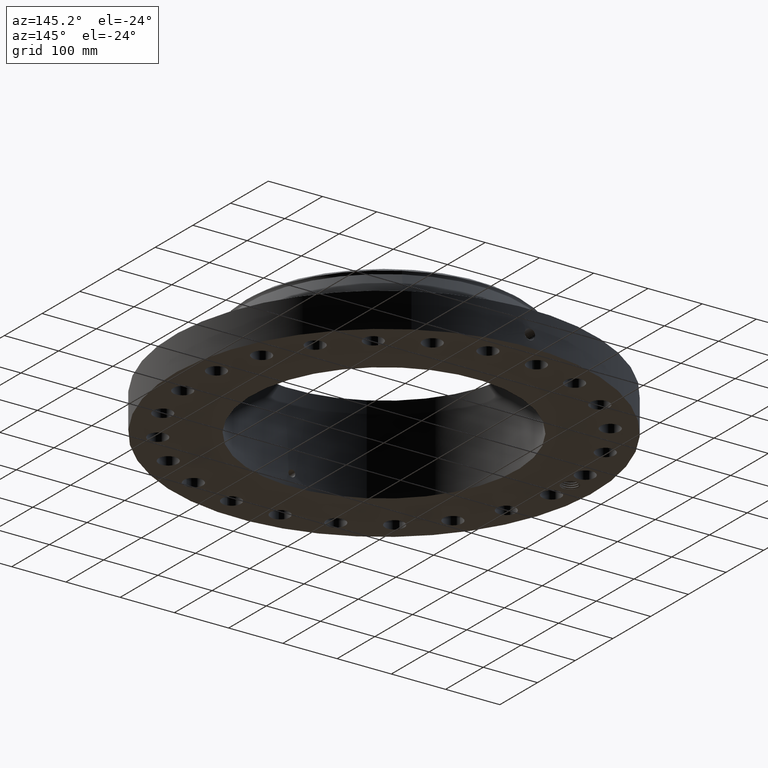
[diagram: clean part render]
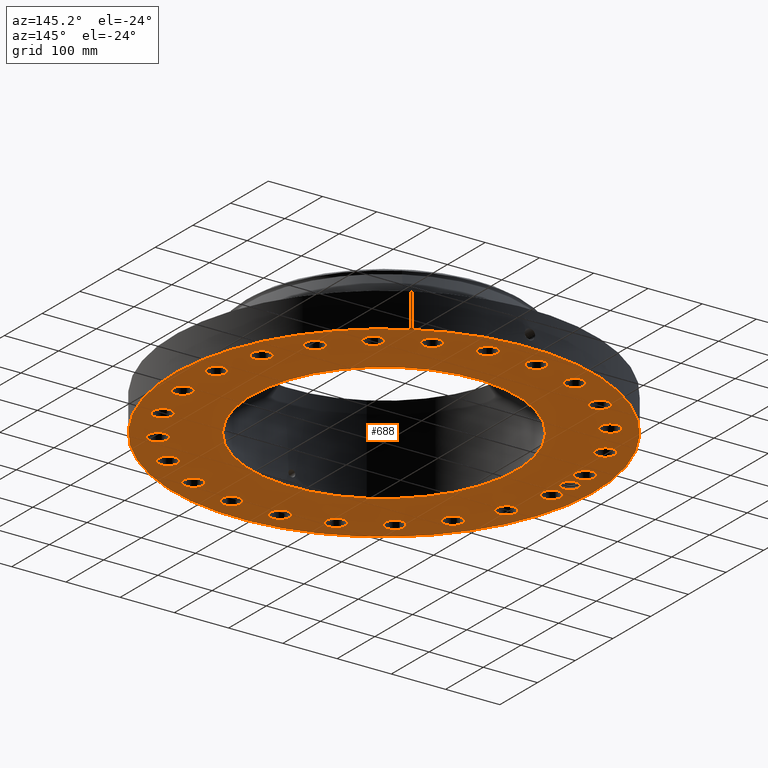
[diagram: same view with one face highlighted and labeled with its STEP entity id]
A machine part, auxiliary view. The second image highlights one B-rep face of the part: STEP entity #688.
In plain terms, the highlighted planar face has unit normal (0, 0, -1).
Its self-contained STEP definition (entity closure, byte-faithful):
#42=AXIS2_PLACEMENT_3D('Circle Axis2P3D',#40,#41,$) ;
#165=AXIS2_PLACEMENT_3D('Plane Axis2P3D',#162,#163,#164) ;
#169=AXIS2_PLACEMENT_3D('Circle Axis2P3D',#167,#168,$) ;
#178=AXIS2_PLACEMENT_3D('Circle Axis2P3D',#176,#177,$) ;
#187=AXIS2_PLACEMENT_3D('Circle Axis2P3D',#185,#186,$) ;
#194=AXIS2_PLACEMENT_3D('Circle Axis2P3D',#192,#193,$) ;
#240=AXIS2_PLACEMENT_3D('Circle Axis2P3D',#238,#239,$) ;
#249=AXIS2_PLACEMENT_3D('Circle Axis2P3D',#247,#248,$) ;
#258=AXIS2_PLACEMENT_3D('Circle Axis2P3D',#256,#257,$) ;
#267=AXIS2_PLACEMENT_3D('Circle Axis2P3D',#265,#266,$) ;
#276=AXIS2_PLACEMENT_3D('Circle Axis2P3D',#274,#275,$) ;
#285=AXIS2_PLACEMENT_3D('Circle Axis2P3D',#283,#284,$) ;
#294=AXIS2_PLACEMENT_3D('Circle Axis2P3D',#292,#293,$) ;
#303=AXIS2_PLACEMENT_3D('Circle Axis2P3D',#301,#302,$) ;
#312=AXIS2_PLACEMENT_3D('Circle Axis2P3D',#310,#311,$) ;
#321=AXIS2_PLACEMENT_3D('Circle Axis2P3D',#319,#320,$) ;
#330=AXIS2_PLACEMENT_3D('Circle Axis2P3D',#328,#329,$) ;
#339=AXIS2_PLACEMENT_3D('Circle Axis2P3D',#337,#338,$) ;
#348=AXIS2_PLACEMENT_3D('Circle Axis2P3D',#346,#347,$) ;
#357=AXIS2_PLACEMENT_3D('Circle Axis2P3D',#355,#356,$) ;
#366=AXIS2_PLACEMENT_3D('Circle Axis2P3D',#364,#365,$) ;
#375=AXIS2_PLACEMENT_3D('Circle Axis2P3D',#373,#374,$) ;
#384=AXIS2_PLACEMENT_3D('Circle Axis2P3D',#382,#383,$) ;
#393=AXIS2_PLACEMENT_3D('Circle Axis2P3D',#391,#392,$) ;
#402=AXIS2_PLACEMENT_3D('Circle Axis2P3D',#400,#401,$) ;
#411=AXIS2_PLACEMENT_3D('Circle Axis2P3D',#409,#410,$) ;
#420=AXIS2_PLACEMENT_3D('Circle Axis2P3D',#418,#419,$) ;
#429=AXIS2_PLACEMENT_3D('Circle Axis2P3D',#427,#428,$) ;
#438=AXIS2_PLACEMENT_3D('Circle Axis2P3D',#436,#437,$) ;
#447=AXIS2_PLACEMENT_3D('Circle Axis2P3D',#445,#446,$) ;
#456=AXIS2_PLACEMENT_3D('Circle Axis2P3D',#454,#455,$) ;
#465=AXIS2_PLACEMENT_3D('Circle Axis2P3D',#463,#464,$) ;
#474=AXIS2_PLACEMENT_3D('Circle Axis2P3D',#472,#473,$) ;
#483=AXIS2_PLACEMENT_3D('Circle Axis2P3D',#481,#482,$) ;
#492=AXIS2_PLACEMENT_3D('Circle Axis2P3D',#490,#491,$) ;
#501=AXIS2_PLACEMENT_3D('Circle Axis2P3D',#499,#500,$) ;
#510=AXIS2_PLACEMENT_3D('Circle Axis2P3D',#508,#509,$) ;
#519=AXIS2_PLACEMENT_3D('Circle Axis2P3D',#517,#518,$) ;
#528=AXIS2_PLACEMENT_3D('Circle Axis2P3D',#526,#527,$) ;
#537=AXIS2_PLACEMENT_3D('Circle Axis2P3D',#535,#536,$) ;
#546=AXIS2_PLACEMENT_3D('Circle Axis2P3D',#544,#545,$) ;
#555=AXIS2_PLACEMENT_3D('Circle Axis2P3D',#553,#554,$) ;
#564=AXIS2_PLACEMENT_3D('Circle Axis2P3D',#562,#563,$) ;
#573=AXIS2_PLACEMENT_3D('Circle Axis2P3D',#571,#572,$) ;
#582=AXIS2_PLACEMENT_3D('Circle Axis2P3D',#580,#581,$) ;
#591=AXIS2_PLACEMENT_3D('Circle Axis2P3D',#589,#590,$) ;
#600=AXIS2_PLACEMENT_3D('Circle Axis2P3D',#598,#599,$) ;
#609=AXIS2_PLACEMENT_3D('Circle Axis2P3D',#607,#608,$) ;
#618=AXIS2_PLACEMENT_3D('Circle Axis2P3D',#616,#617,$) ;
#627=AXIS2_PLACEMENT_3D('Circle Axis2P3D',#625,#626,$) ;
#636=AXIS2_PLACEMENT_3D('Circle Axis2P3D',#634,#635,$) ;
#645=AXIS2_PLACEMENT_3D('Circle Axis2P3D',#643,#644,$) ;
#654=AXIS2_PLACEMENT_3D('Circle Axis2P3D',#652,#653,$) ;
#663=AXIS2_PLACEMENT_3D('Circle Axis2P3D',#661,#662,$) ;
#672=AXIS2_PLACEMENT_3D('Circle Axis2P3D',#670,#671,$) ;
#681=AXIS2_PLACEMENT_3D('Circle Axis2P3D',#679,#680,$) ;
#40=CARTESIAN_POINT('Axis2P3D Location',(0.,0.,0.0600000000002)) ;
#44=CARTESIAN_POINT('Vertex',(-7.31123946374,-13.3831340689,0.0600000000002)) ;
#46=CARTESIAN_POINT('Vertex',(7.31123946374,13.3831340689,0.0600000000002)) ;
#162=CARTESIAN_POINT('Axis2P3D Location',(0.,9.62500000004,0.0600000000002)) ;
#167=CARTESIAN_POINT('Axis2P3D Location',(0.,0.,0.0600000000002)) ;
#176=CARTESIAN_POINT('Axis2P3D Location',(-13.5000000001,-1.1189649382E-015,0.0600000000002)) ;
#180=CARTESIAN_POINT('Vertex',(-12.9605587751,-0.294698084326,0.0600000000002)) ;
#182=CARTESIAN_POINT('Vertex',(-14.0518545838,-0.270740308224,0.0600000000002)) ;
#185=CARTESIAN_POINT('Axis2P3D Location',(-13.5000000001,-1.1189649382E-015,0.0600000000002)) ;
#189=CARTESIAN_POINT('Vertex',(-14.039441225,0.294698084326,0.0600000000002)) ;
#192=CARTESIAN_POINT('Axis2P3D Location',(-13.5000000001,-1.1189649382E-015,0.0600000000002)) ;
#196=CARTESIAN_POINT('Vertex',(-14.052864647,0.26867169227,0.0600000000002)) ;
#200=CARTESIAN_POINT('Control Point',(-14.1249499763,1.94435300406E-006,0.0600000000002)) ;
#201=CARTESIAN_POINT('Control Point',(-14.1230864279,0.0512675049759,0.0600000000002)) ;
#202=CARTESIAN_POINT('Control Point',(-14.1159624907,0.102251961803,0.0600000000002)) ;
#203=CARTESIAN_POINT('Control Point',(-14.1036230026,0.152212436579,0.0600000000002)) ;
#204=CARTESIAN_POINT('Control Point',(-14.0845468883,0.205196011883,0.0600000000002)) ;
#205=CARTESIAN_POINT('Control Point',(-14.0598095442,0.255300651971,0.0600000000002)) ;
#206=CARTESIAN_POINT('Control Point',(-14.057539594,0.259782378553,0.0600000000002)) ;
#207=CARTESIAN_POINT('Control Point',(-14.0552245136,0.264239593728,0.0600000000002)) ;
#208=CARTESIAN_POINT('Control Point',(-14.052864647,0.26867169227,0.0600000000002)) ;
#209=CARTESIAN_POINT('Vertex',(-14.1249499763,1.94435300497E-006,0.0600000000002)) ;
#213=CARTESIAN_POINT('Control Point',(-14.1249984888,-0.00137441822321,0.0600000000002)) ;
#214=CARTESIAN_POINT('Control Point',(-14.1249890896,-0.00109912998109,0.0600000000002)) ;
#215=CARTESIAN_POINT('Control Point',(-14.1249795388,-0.000823849504855,0.0600000000002)) ;
#216=CARTESIAN_POINT('Control Point',(-14.1249698363,-0.000548576758332,0.0600000000002)) ;
#217=CARTESIAN_POINT('Control Point',(-14.1249599821,-0.000273312151102,0.0600000000002)) ;
#218=CARTESIAN_POINT('Control Point',(-14.1249499763,1.94435300518E-006,0.0600000000002)) ;
#219=CARTESIAN_POINT('Vertex',(-14.1249984888,-0.00137441822321,0.0600000000002)) ;
#223=CARTESIAN_POINT('Control Point',(-14.1249984888,-0.00137441822321,0.0600000000002)) ;
#224=CARTESIAN_POINT('Control Point',(-14.1228208459,-0.0578675644873,0.0600000000002)) ;
#225=CARTESIAN_POINT('Control Point',(-14.1142555514,-0.114005207137,0.0600000000002)) ;
#226=CARTESIAN_POINT('Control Point',(-14.0993530818,-0.1688174646,0.0600000000002)) ;
#227=CARTESIAN_POINT('Control Point',(-14.078394632,-0.221344362841,0.0600000000002)) ;
#228=CARTESIAN_POINT('Control Point',(-14.0518545838,-0.270740308224,0.0600000000002)) ;
#238=CARTESIAN_POINT('Axis2P3D Location',(13.3845056286,-1.76210359498,0.0600000000002)) ;
#242=CARTESIAN_POINT('Vertex',(13.9900375963,-2.09290721662,0.0600000000002)) ;
#244=CARTESIAN_POINT('Vertex',(12.7789736609,-1.43129997334,0.0600000000002)) ;
#247=CARTESIAN_POINT('Axis2P3D Location',(13.3845056286,-1.76210359498,0.0600000000002)) ;
#256=CARTESIAN_POINT('Axis2P3D Location',(0.,0.,0.0600000000002)) ;
#260=CARTESIAN_POINT('Vertex',(4.61447080908,8.44673215823,0.0600000000002)) ;
#262=CARTESIAN_POINT('Vertex',(-4.61447080908,-8.44673215823,0.0600000000002)) ;
#265=CARTESIAN_POINT('Axis2P3D Location',(0.,0.,0.0600000000002)) ;
#274=CARTESIAN_POINT('Axis2P3D Location',(12.472373689,-5.16622633695,0.0600000000002)) ;
#278=CARTESIAN_POINT('Vertex',(11.9730930002,-4.68997136972,0.0600000000002)) ;
#280=CARTESIAN_POINT('Vertex',(12.9716543777,-5.64248130418,0.0600000000002)) ;
#283=CARTESIAN_POINT('Axis2P3D Location',(12.472373689,-5.16622633695,0.0600000000002)) ;
#292=CARTESIAN_POINT('Axis2P3D Location',(10.710270094,-8.21827929165,0.0600000000002)) ;
#296=CARTESIAN_POINT('Vertex',(10.351265838,-7.62902896779,0.0600000000002)) ;
#298=CARTESIAN_POINT('Vertex',(11.06927435,-8.80752961551,0.0600000000002)) ;
#301=CARTESIAN_POINT('Axis2P3D Location',(10.710270094,-8.21827929165,0.0600000000002)) ;
#310=CARTESIAN_POINT('Axis2P3D Location',(8.21827929165,-10.710270094,0.0600000000002)) ;
#314=CARTESIAN_POINT('Vertex',(8.02401701516,-10.0481808493,0.0600000000002)) ;
#316=CARTESIAN_POINT('Vertex',(8.41254156814,-11.3723593387,0.0600000000002)) ;
#319=CARTESIAN_POINT('Axis2P3D Location',(8.21827929165,-10.710270094,0.0600000000002)) ;
#328=CARTESIAN_POINT('Axis2P3D Location',(5.16622633695,-12.472373689,0.0600000000002)) ;
#332=CARTESIAN_POINT('Vertex',(5.1499446931,-11.7825658113,0.0600000000002)) ;
#334=CARTESIAN_POINT('Vertex',(5.1825079808,-13.1621815666,0.0600000000002)) ;
#337=CARTESIAN_POINT('Axis2P3D Location',(5.16622633695,-12.472373689,0.0600000000002)) ;
#346=CARTESIAN_POINT('Axis2P3D Location',(1.76210359498,-13.3845056286,0.0600000000002)) ;
#350=CARTESIAN_POINT('Vertex',(1.92491215089,-12.7139883849,0.0600000000002)) ;
#352=CARTESIAN_POINT('Vertex',(1.59929503907,-14.0550228723,0.0600000000002)) ;
#355=CARTESIAN_POINT('Axis2P3D Location',(1.76210359498,-13.3845056286,0.0600000000002)) ;
#364=CARTESIAN_POINT('Axis2P3D Location',(-1.76210359498,-13.3845056286,0.0600000000002)) ;
#368=CARTESIAN_POINT('Vertex',(-1.43129997334,-12.7789736609,0.0600000000002)) ;
#370=CARTESIAN_POINT('Vertex',(-2.09290721662,-13.9900375963,0.0600000000002)) ;
#373=CARTESIAN_POINT('Axis2P3D Location',(-1.76210359498,-13.3845056286,0.0600000000002)) ;
#382=CARTESIAN_POINT('Axis2P3D Location',(-5.16622633695,-12.472373689,0.0600000000002)) ;
#386=CARTESIAN_POINT('Vertex',(-4.68997136972,-11.9730930002,0.0600000000002)) ;
#388=CARTESIAN_POINT('Vertex',(-5.64248130418,-12.9716543777,0.0600000000002)) ;
#391=CARTESIAN_POINT('Axis2P3D Location',(-5.16622633695,-12.472373689,0.0600000000002)) ;
#400=CARTESIAN_POINT('Axis2P3D Location',(-8.21827929165,-10.710270094,0.0600000000002)) ;
#404=CARTESIAN_POINT('Vertex',(-7.62902896779,-10.351265838,0.0600000000002)) ;
#406=CARTESIAN_POINT('Vertex',(-8.80752961551,-11.06927435,0.0600000000002)) ;
#409=CARTESIAN_POINT('Axis2P3D Location',(-8.21827929165,-10.710270094,0.0600000000002)) ;
#418=CARTESIAN_POINT('Axis2P3D Location',(-10.710270094,-8.21827929165,0.0600000000002)) ;
#422=CARTESIAN_POINT('Vertex',(-10.0481808493,-8.02401701516,0.0600000000002)) ;
#424=CARTESIAN_POINT('Vertex',(-11.3723593387,-8.41254156814,0.0600000000002)) ;
#427=CARTESIAN_POINT('Axis2P3D Location',(-10.710270094,-8.21827929165,0.0600000000002)) ;
#436=CARTESIAN_POINT('Axis2P3D Location',(-12.472373689,-5.16622633695,0.0600000000002)) ;
#440=CARTESIAN_POINT('Vertex',(-11.7825658113,-5.1499446931,0.0600000000002)) ;
#442=CARTESIAN_POINT('Vertex',(-13.1621815666,-5.1825079808,0.0600000000002)) ;
#445=CARTESIAN_POINT('Axis2P3D Location',(-12.472373689,-5.16622633695,0.0600000000002)) ;
#454=CARTESIAN_POINT('Axis2P3D Location',(-13.3845056286,-1.76210359498,0.0600000000002)) ;
#458=CARTESIAN_POINT('Vertex',(-12.7139883849,-1.92491215089,0.0600000000002)) ;
#460=CARTESIAN_POINT('Vertex',(-14.0550228723,-1.59929503907,0.0600000000002)) ;
#463=CARTESIAN_POINT('Axis2P3D Location',(-13.3845056286,-1.76210359498,0.0600000000002)) ;
#472=CARTESIAN_POINT('Axis2P3D Location',(-13.3845056286,1.76210359498,0.0600000000002)) ;
#476=CARTESIAN_POINT('Vertex',(-12.7789736609,1.43129997334,0.0600000000002)) ;
#478=CARTESIAN_POINT('Vertex',(-13.9900375963,2.09290721662,0.0600000000002)) ;
#481=CARTESIAN_POINT('Axis2P3D Location',(-13.3845056286,1.76210359498,0.0600000000002)) ;
#490=CARTESIAN_POINT('Axis2P3D Location',(-12.472373689,5.16622633695,0.0600000000002)) ;
#494=CARTESIAN_POINT('Vertex',(-11.9730930002,4.68997136972,0.0600000000002)) ;
#496=CARTESIAN_POINT('Vertex',(-12.9716543777,5.64248130418,0.0600000000002)) ;
#499=CARTESIAN_POINT('Axis2P3D Location',(-12.472373689,5.16622633695,0.0600000000002)) ;
#508=CARTESIAN_POINT('Axis2P3D Location',(-10.710270094,8.21827929165,0.0600000000002)) ;
#512=CARTESIAN_POINT('Vertex',(-10.351265838,7.62902896779,0.0600000000002)) ;
#514=CARTESIAN_POINT('Vertex',(-11.06927435,8.80752961551,0.0600000000002)) ;
#517=CARTESIAN_POINT('Axis2P3D Location',(-10.710270094,8.21827929165,0.0600000000002)) ;
#526=CARTESIAN_POINT('Axis2P3D Location',(-8.21827929165,10.710270094,0.0600000000002)) ;
#530=CARTESIAN_POINT('Vertex',(-8.02401701516,10.0481808493,0.0600000000002)) ;
#532=CARTESIAN_POINT('Vertex',(-8.41254156814,11.3723593387,0.0600000000002)) ;
#535=CARTESIAN_POINT('Axis2P3D Location',(-8.21827929165,10.710270094,0.0600000000002)) ;
#544=CARTESIAN_POINT('Axis2P3D Location',(-5.16622633695,12.472373689,0.0600000000002)) ;
#548=CARTESIAN_POINT('Vertex',(-5.1499446931,11.7825658113,0.0600000000002)) ;
#550=CARTESIAN_POINT('Vertex',(-5.1825079808,13.1621815666,0.0600000000002)) ;
#553=CARTESIAN_POINT('Axis2P3D Location',(-5.16622633695,12.472373689,0.0600000000002)) ;
#562=CARTESIAN_POINT('Axis2P3D Location',(-1.76210359498,13.3845056286,0.0600000000002)) ;
#566=CARTESIAN_POINT('Vertex',(-1.92491215089,12.7139883849,0.0600000000002)) ;
#568=CARTESIAN_POINT('Vertex',(-1.59929503907,14.0550228723,0.0600000000002)) ;
#571=CARTESIAN_POINT('Axis2P3D Location',(-1.76210359498,13.3845056286,0.0600000000002)) ;
#580=CARTESIAN_POINT('Axis2P3D Location',(1.76210359498,13.3845056286,0.0600000000002)) ;
#584=CARTESIAN_POINT('Vertex',(1.43129997334,12.7789736609,0.0600000000002)) ;
#586=CARTESIAN_POINT('Vertex',(2.09290721662,13.9900375963,0.0600000000002)) ;
#589=CARTESIAN_POINT('Axis2P3D Location',(1.76210359498,13.3845056286,0.0600000000002)) ;
#598=CARTESIAN_POINT('Axis2P3D Location',(5.16622633695,12.472373689,0.0600000000002)) ;
#602=CARTESIAN_POINT('Vertex',(4.68997136972,11.9730930002,0.0600000000002)) ;
#604=CARTESIAN_POINT('Vertex',(5.64248130418,12.9716543777,0.0600000000002)) ;
#607=CARTESIAN_POINT('Axis2P3D Location',(5.16622633695,12.472373689,0.0600000000002)) ;
#616=CARTESIAN_POINT('Axis2P3D Location',(8.21827929165,10.710270094,0.0600000000002)) ;
#620=CARTESIAN_POINT('Vertex',(7.62902896779,10.351265838,0.0600000000002)) ;
#622=CARTESIAN_POINT('Vertex',(8.80752961551,11.06927435,0.0600000000002)) ;
#625=CARTESIAN_POINT('Axis2P3D Location',(8.21827929165,10.710270094,0.0600000000002)) ;
#634=CARTESIAN_POINT('Axis2P3D Location',(10.710270094,8.21827929165,0.0600000000002)) ;
#638=CARTESIAN_POINT('Vertex',(10.0481808493,8.02401701516,0.0600000000002)) ;
#640=CARTESIAN_POINT('Vertex',(11.3723593387,8.41254156814,0.0600000000002)) ;
#643=CARTESIAN_POINT('Axis2P3D Location',(10.710270094,8.21827929165,0.0600000000002)) ;
#652=CARTESIAN_POINT('Axis2P3D Location',(12.472373689,5.16622633695,0.0600000000002)) ;
#656=CARTESIAN_POINT('Vertex',(11.7825658113,5.1499446931,0.0600000000002)) ;
#658=CARTESIAN_POINT('Vertex',(13.1621815666,5.1825079808,0.0600000000002)) ;
#661=CARTESIAN_POINT('Axis2P3D Location',(12.472373689,5.16622633695,0.0600000000002)) ;
#670=CARTESIAN_POINT('Axis2P3D Location',(13.3845056286,1.76210359498,0.0600000000002)) ;
#674=CARTESIAN_POINT('Vertex',(12.7139883849,1.92491215089,0.0600000000002)) ;
#676=CARTESIAN_POINT('Vertex',(14.0550228723,1.59929503907,0.0600000000002)) ;
#679=CARTESIAN_POINT('Axis2P3D Location',(13.3845056286,1.76210359498,0.0600000000002)) ;
#41=DIRECTION('Axis2P3D Direction',(0.,0.,-0.0393700787402)) ;
#163=DIRECTION('Axis2P3D Direction',(0.,0.,-0.0393700787402)) ;
#164=DIRECTION('Axis2P3D XDirection',(0.0393700787402,0.,0.)) ;
#168=DIRECTION('Axis2P3D Direction',(0.,0.,-0.0393700787402)) ;
#177=DIRECTION('Axis2P3D Direction',(0.,0.,-0.0393700787402)) ;
#186=DIRECTION('Axis2P3D Direction',(0.,0.,-0.0393700787402)) ;
#193=DIRECTION('Axis2P3D Direction',(0.,0.,-0.0393700787402)) ;
#239=DIRECTION('Axis2P3D Direction',(0.,0.,-0.0393700787402)) ;
#248=DIRECTION('Axis2P3D Direction',(0.,0.,-0.0393700787402)) ;
#257=DIRECTION('Axis2P3D Direction',(0.,0.,-0.0393700787402)) ;
#266=DIRECTION('Axis2P3D Direction',(0.,0.,-0.0393700787402)) ;
#275=DIRECTION('Axis2P3D Direction',(0.,0.,-0.0393700787402)) ;
#284=DIRECTION('Axis2P3D Direction',(0.,0.,-0.0393700787402)) ;
#293=DIRECTION('Axis2P3D Direction',(0.,0.,-0.0393700787402)) ;
#302=DIRECTION('Axis2P3D Direction',(0.,0.,-0.0393700787402)) ;
#311=DIRECTION('Axis2P3D Direction',(0.,0.,-0.0393700787402)) ;
#320=DIRECTION('Axis2P3D Direction',(0.,0.,-0.0393700787402)) ;
#329=DIRECTION('Axis2P3D Direction',(0.,0.,-0.0393700787402)) ;
#338=DIRECTION('Axis2P3D Direction',(0.,0.,-0.0393700787402)) ;
#347=DIRECTION('Axis2P3D Direction',(0.,0.,-0.0393700787402)) ;
#356=DIRECTION('Axis2P3D Direction',(0.,0.,-0.0393700787402)) ;
#365=DIRECTION('Axis2P3D Direction',(0.,0.,-0.0393700787402)) ;
#374=DIRECTION('Axis2P3D Direction',(0.,0.,-0.0393700787402)) ;
#383=DIRECTION('Axis2P3D Direction',(0.,0.,-0.0393700787402)) ;
#392=DIRECTION('Axis2P3D Direction',(0.,0.,-0.0393700787402)) ;
#401=DIRECTION('Axis2P3D Direction',(0.,0.,-0.0393700787402)) ;
#410=DIRECTION('Axis2P3D Direction',(0.,0.,-0.0393700787402)) ;
#419=DIRECTION('Axis2P3D Direction',(0.,0.,-0.0393700787402)) ;
#428=DIRECTION('Axis2P3D Direction',(0.,0.,-0.0393700787402)) ;
#437=DIRECTION('Axis2P3D Direction',(0.,0.,-0.0393700787402)) ;
#446=DIRECTION('Axis2P3D Direction',(0.,0.,-0.0393700787402)) ;
#455=DIRECTION('Axis2P3D Direction',(0.,0.,-0.0393700787402)) ;
#464=DIRECTION('Axis2P3D Direction',(0.,0.,-0.0393700787402)) ;
#473=DIRECTION('Axis2P3D Direction',(0.,0.,-0.0393700787402)) ;
#482=DIRECTION('Axis2P3D Direction',(0.,0.,-0.0393700787402)) ;
#491=DIRECTION('Axis2P3D Direction',(0.,0.,-0.0393700787402)) ;
#500=DIRECTION('Axis2P3D Direction',(0.,0.,-0.0393700787402)) ;
#509=DIRECTION('Axis2P3D Direction',(0.,0.,-0.0393700787402)) ;
#518=DIRECTION('Axis2P3D Direction',(0.,0.,-0.0393700787402)) ;
#527=DIRECTION('Axis2P3D Direction',(0.,0.,-0.0393700787402)) ;
#536=DIRECTION('Axis2P3D Direction',(0.,0.,-0.0393700787402)) ;
#545=DIRECTION('Axis2P3D Direction',(0.,0.,-0.0393700787402)) ;
#554=DIRECTION('Axis2P3D Direction',(0.,0.,-0.0393700787402)) ;
#563=DIRECTION('Axis2P3D Direction',(0.,0.,-0.0393700787402)) ;
#572=DIRECTION('Axis2P3D Direction',(0.,0.,-0.0393700787402)) ;
#581=DIRECTION('Axis2P3D Direction',(0.,0.,-0.0393700787402)) ;
#590=DIRECTION('Axis2P3D Direction',(0.,0.,-0.0393700787402)) ;
#599=DIRECTION('Axis2P3D Direction',(0.,0.,-0.0393700787402)) ;
#608=DIRECTION('Axis2P3D Direction',(0.,0.,-0.0393700787402)) ;
#617=DIRECTION('Axis2P3D Direction',(0.,0.,-0.0393700787402)) ;
#626=DIRECTION('Axis2P3D Direction',(0.,0.,-0.0393700787402)) ;
#635=DIRECTION('Axis2P3D Direction',(0.,0.,-0.0393700787402)) ;
#644=DIRECTION('Axis2P3D Direction',(0.,0.,-0.0393700787402)) ;
#653=DIRECTION('Axis2P3D Direction',(0.,0.,-0.0393700787402)) ;
#662=DIRECTION('Axis2P3D Direction',(0.,0.,-0.0393700787402)) ;
#671=DIRECTION('Axis2P3D Direction',(0.,0.,-0.0393700787402)) ;
#680=DIRECTION('Axis2P3D Direction',(0.,0.,-0.0393700787402)) ;
#173=ORIENTED_EDGE('',*,*,#48,.T.) ;
#174=ORIENTED_EDGE('',*,*,#171,.T.) ;
#231=ORIENTED_EDGE('',*,*,#184,.F.) ;
#232=ORIENTED_EDGE('',*,*,#191,.F.) ;
#233=ORIENTED_EDGE('',*,*,#198,.F.) ;
#234=ORIENTED_EDGE('',*,*,#211,.F.) ;
#235=ORIENTED_EDGE('',*,*,#221,.F.) ;
#236=ORIENTED_EDGE('',*,*,#229,.T.) ;
#253=ORIENTED_EDGE('',*,*,#246,.F.) ;
#254=ORIENTED_EDGE('',*,*,#251,.F.) ;
#271=ORIENTED_EDGE('',*,*,#264,.F.) ;
#272=ORIENTED_EDGE('',*,*,#269,.F.) ;
#289=ORIENTED_EDGE('',*,*,#282,.F.) ;
#290=ORIENTED_EDGE('',*,*,#287,.F.) ;
#307=ORIENTED_EDGE('',*,*,#300,.F.) ;
#308=ORIENTED_EDGE('',*,*,#305,.F.) ;
#325=ORIENTED_EDGE('',*,*,#318,.F.) ;
#326=ORIENTED_EDGE('',*,*,#323,.F.) ;
#343=ORIENTED_EDGE('',*,*,#336,.F.) ;
#344=ORIENTED_EDGE('',*,*,#341,.F.) ;
#361=ORIENTED_EDGE('',*,*,#354,.F.) ;
#362=ORIENTED_EDGE('',*,*,#359,.F.) ;
#379=ORIENTED_EDGE('',*,*,#372,.F.) ;
#380=ORIENTED_EDGE('',*,*,#377,.F.) ;
#397=ORIENTED_EDGE('',*,*,#390,.F.) ;
#398=ORIENTED_EDGE('',*,*,#395,.F.) ;
#415=ORIENTED_EDGE('',*,*,#408,.F.) ;
#416=ORIENTED_EDGE('',*,*,#413,.F.) ;
#433=ORIENTED_EDGE('',*,*,#426,.F.) ;
#434=ORIENTED_EDGE('',*,*,#431,.F.) ;
#451=ORIENTED_EDGE('',*,*,#444,.F.) ;
#452=ORIENTED_EDGE('',*,*,#449,.F.) ;
#469=ORIENTED_EDGE('',*,*,#462,.F.) ;
#470=ORIENTED_EDGE('',*,*,#467,.F.) ;
#487=ORIENTED_EDGE('',*,*,#480,.F.) ;
#488=ORIENTED_EDGE('',*,*,#485,.F.) ;
#505=ORIENTED_EDGE('',*,*,#498,.F.) ;
#506=ORIENTED_EDGE('',*,*,#503,.F.) ;
#523=ORIENTED_EDGE('',*,*,#516,.F.) ;
#524=ORIENTED_EDGE('',*,*,#521,.F.) ;
#541=ORIENTED_EDGE('',*,*,#534,.F.) ;
#542=ORIENTED_EDGE('',*,*,#539,.F.) ;
#559=ORIENTED_EDGE('',*,*,#552,.F.) ;
#560=ORIENTED_EDGE('',*,*,#557,.F.) ;
#577=ORIENTED_EDGE('',*,*,#570,.F.) ;
#578=ORIENTED_EDGE('',*,*,#575,.F.) ;
#595=ORIENTED_EDGE('',*,*,#588,.F.) ;
#596=ORIENTED_EDGE('',*,*,#593,.F.) ;
#613=ORIENTED_EDGE('',*,*,#606,.F.) ;
#614=ORIENTED_EDGE('',*,*,#611,.F.) ;
#631=ORIENTED_EDGE('',*,*,#624,.F.) ;
#632=ORIENTED_EDGE('',*,*,#629,.F.) ;
#649=ORIENTED_EDGE('',*,*,#642,.F.) ;
#650=ORIENTED_EDGE('',*,*,#647,.F.) ;
#667=ORIENTED_EDGE('',*,*,#660,.F.) ;
#668=ORIENTED_EDGE('',*,*,#665,.F.) ;
#685=ORIENTED_EDGE('',*,*,#678,.F.) ;
#686=ORIENTED_EDGE('',*,*,#683,.F.) ;
#237=FACE_BOUND('',#230,.T.) ;
#255=FACE_BOUND('',#252,.T.) ;
#273=FACE_BOUND('',#270,.T.) ;
#291=FACE_BOUND('',#288,.T.) ;
#309=FACE_BOUND('',#306,.T.) ;
#327=FACE_BOUND('',#324,.T.) ;
#345=FACE_BOUND('',#342,.T.) ;
#363=FACE_BOUND('',#360,.T.) ;
#381=FACE_BOUND('',#378,.T.) ;
#399=FACE_BOUND('',#396,.T.) ;
#417=FACE_BOUND('',#414,.T.) ;
#435=FACE_BOUND('',#432,.T.) ;
#453=FACE_BOUND('',#450,.T.) ;
#471=FACE_BOUND('',#468,.T.) ;
#489=FACE_BOUND('',#486,.T.) ;
#507=FACE_BOUND('',#504,.T.) ;
#525=FACE_BOUND('',#522,.T.) ;
#543=FACE_BOUND('',#540,.T.) ;
#561=FACE_BOUND('',#558,.T.) ;
#579=FACE_BOUND('',#576,.T.) ;
#597=FACE_BOUND('',#594,.T.) ;
#615=FACE_BOUND('',#612,.T.) ;
#633=FACE_BOUND('',#630,.T.) ;
#651=FACE_BOUND('',#648,.T.) ;
#669=FACE_BOUND('',#666,.T.) ;
#687=FACE_BOUND('',#684,.T.) ;
#688=ADVANCED_FACE('PartBody',(#175,#237,#255,#273,#291,#309,#327,#345,#363,#381,#399,#417,#435,#453,#471,#489,#507,#525,#543,#561,#579,#597,#615,#633,#651,#669,#687),#166,.T.) ;
#199=B_SPLINE_CURVE_WITH_KNOTS('',5,(#200,#201,#202,#203,#204,#205,#206,#207,#208),.UNSPECIFIED.,.F.,.U.,(6,3,6),(0.,8.96338034748,9.84904941884),.UNSPECIFIED.) ;
#212=B_SPLINE_CURVE_WITH_KNOTS('',5,(#213,#214,#215,#216,#217,#218),.UNSPECIFIED.,.F.,.U.,(6,6),(0.,0.0481264363334),.UNSPECIFIED.) ;
#222=B_SPLINE_CURVE_WITH_KNOTS('',5,(#223,#224,#225,#226,#227,#228),.UNSPECIFIED.,.F.,.U.,(6,6),(0.,9.87782269124),.UNSPECIFIED.) ;
#43=CIRCLE('generated circle',#42,15.2500000001) ;
#170=CIRCLE('generated circle',#169,15.2500000001) ;
#179=CIRCLE('generated circle',#178,0.614690000002) ;
#188=CIRCLE('generated circle',#187,0.614690000002) ;
#195=CIRCLE('generated circle',#194,0.614690000002) ;
#241=CIRCLE('generated circle',#240,0.690000000003) ;
#250=CIRCLE('generated circle',#249,0.690000000003) ;
#259=CIRCLE('generated circle',#258,9.62500000004) ;
#268=CIRCLE('generated circle',#267,9.62500000004) ;
#277=CIRCLE('generated circle',#276,0.690000000003) ;
#286=CIRCLE('generated circle',#285,0.690000000003) ;
#295=CIRCLE('generated circle',#294,0.690000000003) ;
#304=CIRCLE('generated circle',#303,0.690000000003) ;
#313=CIRCLE('generated circle',#312,0.690000000003) ;
#322=CIRCLE('generated circle',#321,0.690000000003) ;
#331=CIRCLE('generated circle',#330,0.690000000003) ;
#340=CIRCLE('generated circle',#339,0.690000000003) ;
#349=CIRCLE('generated circle',#348,0.690000000003) ;
#358=CIRCLE('generated circle',#357,0.690000000003) ;
#367=CIRCLE('generated circle',#366,0.690000000003) ;
#376=CIRCLE('generated circle',#375,0.690000000003) ;
#385=CIRCLE('generated circle',#384,0.690000000003) ;
#394=CIRCLE('generated circle',#393,0.690000000003) ;
#403=CIRCLE('generated circle',#402,0.690000000003) ;
#412=CIRCLE('generated circle',#411,0.690000000003) ;
#421=CIRCLE('generated circle',#420,0.690000000003) ;
#430=CIRCLE('generated circle',#429,0.690000000003) ;
#439=CIRCLE('generated circle',#438,0.690000000003) ;
#448=CIRCLE('generated circle',#447,0.690000000003) ;
#457=CIRCLE('generated circle',#456,0.690000000003) ;
#466=CIRCLE('generated circle',#465,0.690000000003) ;
#475=CIRCLE('generated circle',#474,0.690000000003) ;
#484=CIRCLE('generated circle',#483,0.690000000003) ;
#493=CIRCLE('generated circle',#492,0.690000000003) ;
#502=CIRCLE('generated circle',#501,0.690000000003) ;
#511=CIRCLE('generated circle',#510,0.690000000003) ;
#520=CIRCLE('generated circle',#519,0.690000000003) ;
#529=CIRCLE('generated circle',#528,0.690000000003) ;
#538=CIRCLE('generated circle',#537,0.690000000003) ;
#547=CIRCLE('generated circle',#546,0.690000000003) ;
#556=CIRCLE('generated circle',#555,0.690000000003) ;
#565=CIRCLE('generated circle',#564,0.690000000003) ;
#574=CIRCLE('generated circle',#573,0.690000000003) ;
#583=CIRCLE('generated circle',#582,0.690000000003) ;
#592=CIRCLE('generated circle',#591,0.690000000003) ;
#601=CIRCLE('generated circle',#600,0.690000000003) ;
#610=CIRCLE('generated circle',#609,0.690000000003) ;
#619=CIRCLE('generated circle',#618,0.690000000003) ;
#628=CIRCLE('generated circle',#627,0.690000000003) ;
#637=CIRCLE('generated circle',#636,0.690000000003) ;
#646=CIRCLE('generated circle',#645,0.690000000003) ;
#655=CIRCLE('generated circle',#654,0.690000000003) ;
#664=CIRCLE('generated circle',#663,0.690000000003) ;
#673=CIRCLE('generated circle',#672,0.690000000003) ;
#682=CIRCLE('generated circle',#681,0.690000000003) ;
#48=EDGE_CURVE('',#45,#47,#43,.T.) ;
#171=EDGE_CURVE('',#47,#45,#170,.T.) ;
#184=EDGE_CURVE('',#181,#183,#179,.T.) ;
#191=EDGE_CURVE('',#190,#181,#188,.T.) ;
#198=EDGE_CURVE('',#197,#190,#195,.T.) ;
#211=EDGE_CURVE('',#210,#197,#199,.T.) ;
#221=EDGE_CURVE('',#220,#210,#212,.T.) ;
#229=EDGE_CURVE('',#220,#183,#222,.T.) ;
#246=EDGE_CURVE('',#243,#245,#241,.T.) ;
#251=EDGE_CURVE('',#245,#243,#250,.T.) ;
#264=EDGE_CURVE('',#261,#263,#259,.T.) ;
#269=EDGE_CURVE('',#263,#261,#268,.T.) ;
#282=EDGE_CURVE('',#279,#281,#277,.T.) ;
#287=EDGE_CURVE('',#281,#279,#286,.T.) ;
#300=EDGE_CURVE('',#297,#299,#295,.T.) ;
#305=EDGE_CURVE('',#299,#297,#304,.T.) ;
#318=EDGE_CURVE('',#315,#317,#313,.T.) ;
#323=EDGE_CURVE('',#317,#315,#322,.T.) ;
#336=EDGE_CURVE('',#333,#335,#331,.T.) ;
#341=EDGE_CURVE('',#335,#333,#340,.T.) ;
#354=EDGE_CURVE('',#351,#353,#349,.T.) ;
#359=EDGE_CURVE('',#353,#351,#358,.T.) ;
#372=EDGE_CURVE('',#369,#371,#367,.T.) ;
#377=EDGE_CURVE('',#371,#369,#376,.T.) ;
#390=EDGE_CURVE('',#387,#389,#385,.T.) ;
#395=EDGE_CURVE('',#389,#387,#394,.T.) ;
#408=EDGE_CURVE('',#405,#407,#403,.T.) ;
#413=EDGE_CURVE('',#407,#405,#412,.T.) ;
#426=EDGE_CURVE('',#423,#425,#421,.T.) ;
#431=EDGE_CURVE('',#425,#423,#430,.T.) ;
#444=EDGE_CURVE('',#441,#443,#439,.T.) ;
#449=EDGE_CURVE('',#443,#441,#448,.T.) ;
#462=EDGE_CURVE('',#459,#461,#457,.T.) ;
#467=EDGE_CURVE('',#461,#459,#466,.T.) ;
#480=EDGE_CURVE('',#477,#479,#475,.T.) ;
#485=EDGE_CURVE('',#479,#477,#484,.T.) ;
#498=EDGE_CURVE('',#495,#497,#493,.T.) ;
#503=EDGE_CURVE('',#497,#495,#502,.T.) ;
#516=EDGE_CURVE('',#513,#515,#511,.T.) ;
#521=EDGE_CURVE('',#515,#513,#520,.T.) ;
#534=EDGE_CURVE('',#531,#533,#529,.T.) ;
#539=EDGE_CURVE('',#533,#531,#538,.T.) ;
#552=EDGE_CURVE('',#549,#551,#547,.T.) ;
#557=EDGE_CURVE('',#551,#549,#556,.T.) ;
#570=EDGE_CURVE('',#567,#569,#565,.T.) ;
#575=EDGE_CURVE('',#569,#567,#574,.T.) ;
#588=EDGE_CURVE('',#585,#587,#583,.T.) ;
#593=EDGE_CURVE('',#587,#585,#592,.T.) ;
#606=EDGE_CURVE('',#603,#605,#601,.T.) ;
#611=EDGE_CURVE('',#605,#603,#610,.T.) ;
#624=EDGE_CURVE('',#621,#623,#619,.T.) ;
#629=EDGE_CURVE('',#623,#621,#628,.T.) ;
#642=EDGE_CURVE('',#639,#641,#637,.T.) ;
#647=EDGE_CURVE('',#641,#639,#646,.T.) ;
#660=EDGE_CURVE('',#657,#659,#655,.T.) ;
#665=EDGE_CURVE('',#659,#657,#664,.T.) ;
#678=EDGE_CURVE('',#675,#677,#673,.T.) ;
#683=EDGE_CURVE('',#677,#675,#682,.T.) ;
#172=EDGE_LOOP('',(#173,#174)) ;
#230=EDGE_LOOP('',(#231,#232,#233,#234,#235,#236)) ;
#252=EDGE_LOOP('',(#253,#254)) ;
#270=EDGE_LOOP('',(#271,#272)) ;
#288=EDGE_LOOP('',(#289,#290)) ;
#306=EDGE_LOOP('',(#307,#308)) ;
#324=EDGE_LOOP('',(#325,#326)) ;
#342=EDGE_LOOP('',(#343,#344)) ;
#360=EDGE_LOOP('',(#361,#362)) ;
#378=EDGE_LOOP('',(#379,#380)) ;
#396=EDGE_LOOP('',(#397,#398)) ;
#414=EDGE_LOOP('',(#415,#416)) ;
#432=EDGE_LOOP('',(#433,#434)) ;
#450=EDGE_LOOP('',(#451,#452)) ;
#468=EDGE_LOOP('',(#469,#470)) ;
#486=EDGE_LOOP('',(#487,#488)) ;
#504=EDGE_LOOP('',(#505,#506)) ;
#522=EDGE_LOOP('',(#523,#524)) ;
#540=EDGE_LOOP('',(#541,#542)) ;
#558=EDGE_LOOP('',(#559,#560)) ;
#576=EDGE_LOOP('',(#577,#578)) ;
#594=EDGE_LOOP('',(#595,#596)) ;
#612=EDGE_LOOP('',(#613,#614)) ;
#630=EDGE_LOOP('',(#631,#632)) ;
#648=EDGE_LOOP('',(#649,#650)) ;
#666=EDGE_LOOP('',(#667,#668)) ;
#684=EDGE_LOOP('',(#685,#686)) ;
#175=FACE_OUTER_BOUND('',#172,.T.) ;
#166=PLANE('',#165) ;
#45=VERTEX_POINT('',#44) ;
#47=VERTEX_POINT('',#46) ;
#181=VERTEX_POINT('',#180) ;
#183=VERTEX_POINT('',#182) ;
#190=VERTEX_POINT('',#189) ;
#197=VERTEX_POINT('',#196) ;
#210=VERTEX_POINT('',#209) ;
#220=VERTEX_POINT('',#219) ;
#243=VERTEX_POINT('',#242) ;
#245=VERTEX_POINT('',#244) ;
#261=VERTEX_POINT('',#260) ;
#263=VERTEX_POINT('',#262) ;
#279=VERTEX_POINT('',#278) ;
#281=VERTEX_POINT('',#280) ;
#297=VERTEX_POINT('',#296) ;
#299=VERTEX_POINT('',#298) ;
#315=VERTEX_POINT('',#314) ;
#317=VERTEX_POINT('',#316) ;
#333=VERTEX_POINT('',#332) ;
#335=VERTEX_POINT('',#334) ;
#351=VERTEX_POINT('',#350) ;
#353=VERTEX_POINT('',#352) ;
#369=VERTEX_POINT('',#368) ;
#371=VERTEX_POINT('',#370) ;
#387=VERTEX_POINT('',#386) ;
#389=VERTEX_POINT('',#388) ;
#405=VERTEX_POINT('',#404) ;
#407=VERTEX_POINT('',#406) ;
#423=VERTEX_POINT('',#422) ;
#425=VERTEX_POINT('',#424) ;
#441=VERTEX_POINT('',#440) ;
#443=VERTEX_POINT('',#442) ;
#459=VERTEX_POINT('',#458) ;
#461=VERTEX_POINT('',#460) ;
#477=VERTEX_POINT('',#476) ;
#479=VERTEX_POINT('',#478) ;
#495=VERTEX_POINT('',#494) ;
#497=VERTEX_POINT('',#496) ;
#513=VERTEX_POINT('',#512) ;
#515=VERTEX_POINT('',#514) ;
#531=VERTEX_POINT('',#530) ;
#533=VERTEX_POINT('',#532) ;
#549=VERTEX_POINT('',#548) ;
#551=VERTEX_POINT('',#550) ;
#567=VERTEX_POINT('',#566) ;
#569=VERTEX_POINT('',#568) ;
#585=VERTEX_POINT('',#584) ;
#587=VERTEX_POINT('',#586) ;
#603=VERTEX_POINT('',#602) ;
#605=VERTEX_POINT('',#604) ;
#621=VERTEX_POINT('',#620) ;
#623=VERTEX_POINT('',#622) ;
#639=VERTEX_POINT('',#638) ;
#641=VERTEX_POINT('',#640) ;
#657=VERTEX_POINT('',#656) ;
#659=VERTEX_POINT('',#658) ;
#675=VERTEX_POINT('',#674) ;
#677=VERTEX_POINT('',#676) ;